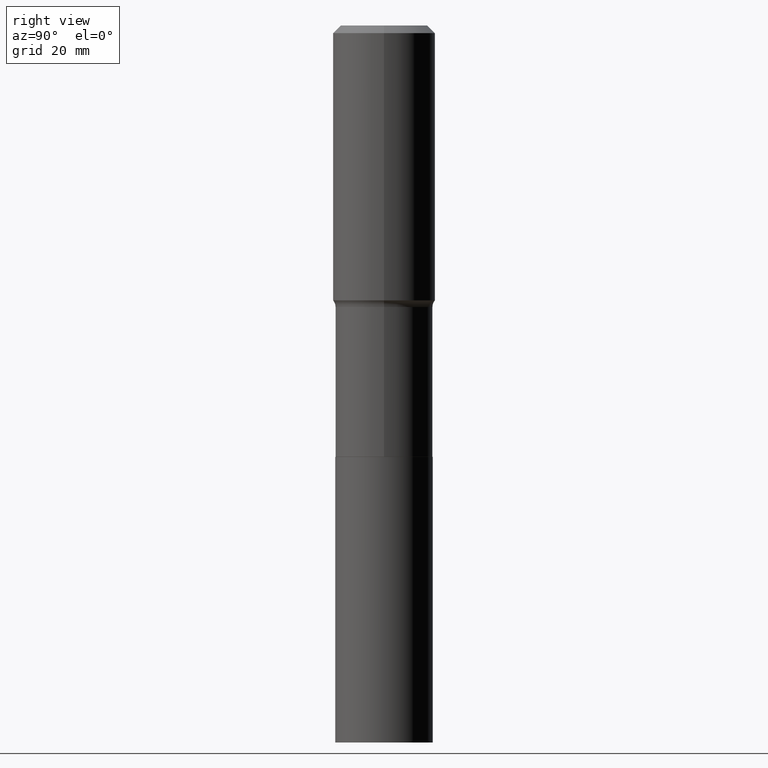
[diagram: clean part render]
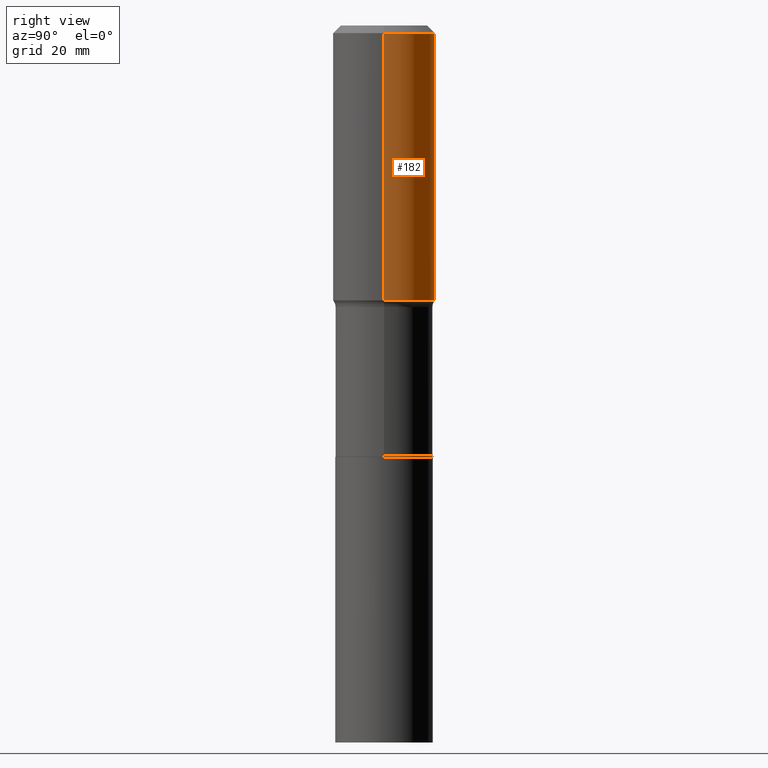
[diagram: same view with one face highlighted and labeled with its STEP entity id]
A machine part, right view. The second image highlights one B-rep face of the part: STEP entity #182.
In plain terms, the highlighted cylindrical surface (partial cylindrical patch) has radius 10 mm, axis along (-0, 0, 1).
Its self-contained STEP definition (entity closure, byte-faithful):
#1 = CARTESIAN_POINT ( 'NONE',  ( 0.000000000000000000, 0.000000000000000000, 0.000000000000000000 ) ) ;
#42 = CIRCLE ( 'NONE', #270, 0.3937000000000000499 ) ;
#44 = CARTESIAN_POINT ( 'NONE',  ( 1.444171603492641547E-30, -2.061894304653832726E-16, -0.05905500000000037109 ) ) ;
#73 = EDGE_CURVE ( 'NONE', #465, #307, #42, .T. ) ;
#82 = CIRCLE ( 'NONE', #318, 0.3937000000000002720 ) ;
#97 = DIRECTION ( 'NONE',  ( -2.445468806185136877E-29, 3.491481338843145188E-15, 1.000000000000000000 ) ) ;
#103 = CARTESIAN_POINT ( 'NONE',  ( 0.3937000000000001609, -2.749192406205084400E-15, 1.919750796630860732E-29 ) ) ;
#121 = ORIENTED_EDGE ( 'NONE', *, *, #216, .T. ) ;
#135 = DIRECTION ( 'NONE',  ( 1.000000000000000000, -6.982962677686269077E-15, 0.000000000000000000 ) ) ;
#140 = VECTOR ( 'NONE', #149, 39.37007874015748143 ) ;
#145 = DIRECTION ( 'NONE',  ( 1.000000000000000000, -6.982962677686266711E-15, 4.876176775795935793E-29 ) ) ;
#149 = DIRECTION ( 'NONE',  ( -2.445468806185136877E-29, 3.491481338843145188E-15, 1.000000000000000000 ) ) ;
#156 = EDGE_CURVE ( 'NONE', #329, #257, #82, .T. ) ;
#157 = DIRECTION ( 'NONE',  ( -2.445468806185136597E-29, 3.491481338843145583E-15, 1.000000000000000000 ) ) ;
#182 = ADVANCED_FACE ( 'NONE', ( #186 ), #324, .T. ) ;
#186 = FACE_OUTER_BOUND ( 'NONE', #433, .T. ) ;
#195 = DIRECTION ( 'NONE',  ( -2.445468806185136597E-29, 3.491481338843145583E-15, 1.000000000000000000 ) ) ;
#199 = ORIENTED_EDGE ( 'NONE', *, *, #339, .F. ) ;
#216 = EDGE_CURVE ( 'NONE', #257, #307, #242, .T. ) ;
#237 = ORIENTED_EDGE ( 'NONE', *, *, #73, .F. ) ;
#242 = LINE ( 'NONE', #415, #140 ) ;
#257 = VERTEX_POINT ( 'NONE', #278 ) ;
#270 = AXIS2_PLACEMENT_3D ( 'NONE', #44, #195, #294 ) ;
#278 = CARTESIAN_POINT ( 'NONE',  ( -0.3937000000000002720, -4.579732283208647905E-15, -2.112896595443491066 ) ) ;
#294 = DIRECTION ( 'NONE',  ( 1.000000000000000000, -6.982962677686265922E-15, 0.000000000000000000 ) ) ;
#299 = CARTESIAN_POINT ( 'NONE',  ( 0.3937000000000000499, -2.955381836670466588E-15, -0.05905500000000037109 ) ) ;
#303 = ORIENTED_EDGE ( 'NONE', *, *, #156, .T. ) ;
#307 = VERTEX_POINT ( 'NONE', #320 ) ;
#309 = DIRECTION ( 'NONE',  ( -2.445468806185136597E-29, 3.491481338843145583E-15, 1.000000000000000000 ) ) ;
#317 = CARTESIAN_POINT ( 'NONE',  ( 0.3937000000000002720, -1.012633144010124985E-14, -2.112896595443491066 ) ) ;
#318 = AXIS2_PLACEMENT_3D ( 'NONE', #413, #309, #135 ) ;
#320 = CARTESIAN_POINT ( 'NONE',  ( -0.3937000000000000499, -9.942574814932580477E-16, -0.05905500000000037109 ) ) ;
#324 = CYLINDRICAL_SURFACE ( 'NONE', #449, 0.3937000000000001609 ) ;
#329 = VERTEX_POINT ( 'NONE', #317 ) ;
#339 = EDGE_CURVE ( 'NONE', #329, #465, #459, .T. ) ;
#413 = CARTESIAN_POINT ( 'NONE',  ( 5.167022714851833902E-29, -7.377139033896165058E-15, -2.112896595443491066 ) ) ;
#415 = CARTESIAN_POINT ( 'NONE',  ( -0.3937000000000001609, 2.797406750687515575E-15, -1.936584745033357296E-29 ) ) ;
#427 = VECTOR ( 'NONE', #97, 39.37007874015748143 ) ;
#433 = EDGE_LOOP ( 'NONE', ( #303, #121, #237, #199 ) ) ;
#449 = AXIS2_PLACEMENT_3D ( 'NONE', #1, #157, #145 ) ;
#459 = LINE ( 'NONE', #103, #427 ) ;
#465 = VERTEX_POINT ( 'NONE', #299 ) ;